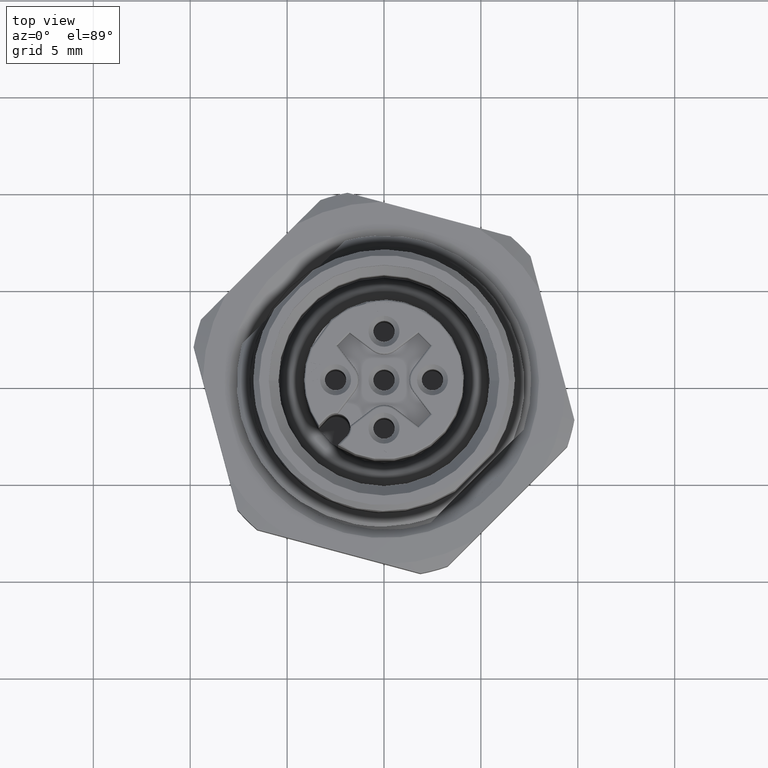
[diagram: clean part render]
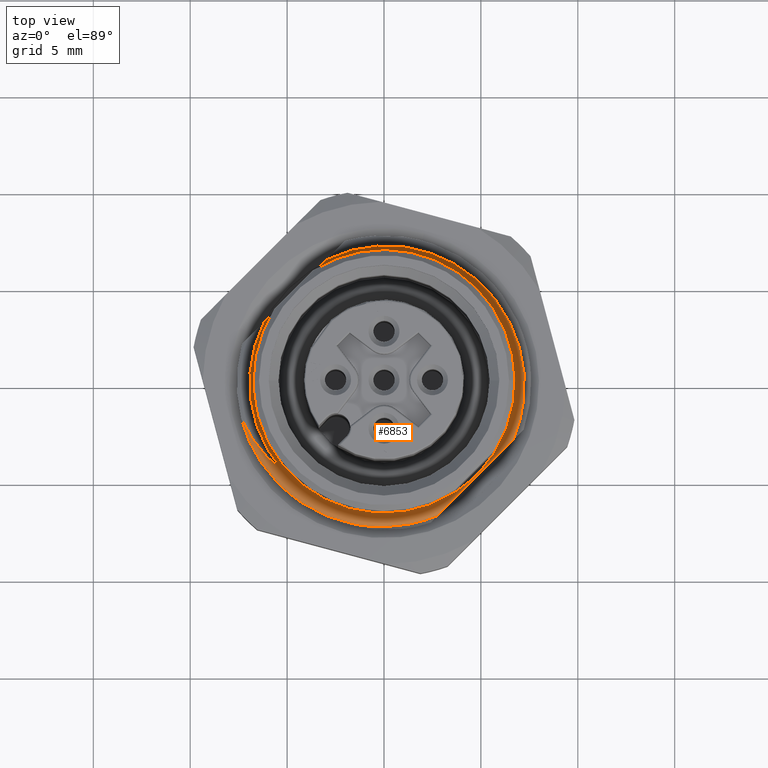
[diagram: same view with one face highlighted and labeled with its STEP entity id]
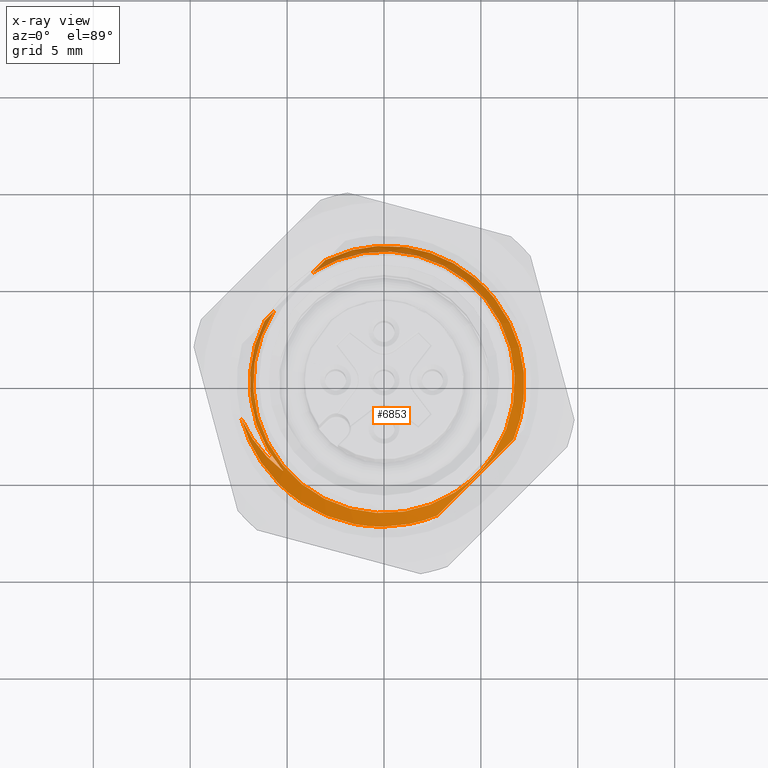
[diagram: x-ray of the same camera — body ghosted, the highlighted face saturated]
A machine part, top view. The second image highlights one B-rep face of the part: STEP entity #6853.
The next image is the same camera in x-ray: the body ghosted, the highlighted face saturated — about 8% of this face is hidden behind the body in this view.
In plain terms, the highlighted conical surface has half-angle 45 deg.
Its self-contained STEP definition (entity closure, byte-faithful):
#52=CARTESIAN_POINT('',(6.680182459152E0,-2.936469764985E0,6.402898358373E0));
#53=CARTESIAN_POINT('',(6.543415438608E0,-3.073236785529E0,6.473065454310E0));
#54=CARTESIAN_POINT('',(6.273211172743E0,-3.343441051394E0,6.598270466426E0));
#55=CARTESIAN_POINT('',(5.879728601174E0,-3.736923622963E0,6.740155228057E0));
#56=CARTESIAN_POINT('',(5.492769420778E0,-4.123882803360E0,6.838514652622E0));
#57=CARTESIAN_POINT('',(5.109107677332E0,-4.507544546805E0,6.893852236459E0));
#58=CARTESIAN_POINT('',(4.727056607656E0,-4.889595616481E0,6.906185992538E0));
#59=CARTESIAN_POINT('',(4.344623123279E0,-5.272029100858E0,6.875567361463E0));
#60=CARTESIAN_POINT('',(3.959746513078E0,-5.656905711059E0,6.801927895653E0));
#61=CARTESIAN_POINT('',(3.570454248147E0,-6.046197975990E0,6.685135809840E0));
#62=CARTESIAN_POINT('',(3.173053085985E0,-6.443599138152E0,6.524304869747E0));
#63=CARTESIAN_POINT('',(2.898708172987E0,-6.717944051150E0,6.385596429383E0));
#64=CARTESIAN_POINT('',(2.759543912717E0,-6.857108311420E0,6.308449621307E0));
#259=CARTESIAN_POINT('',(0.E0,0.E0,6.77E0));
#260=DIRECTION('',(0.E0,0.E0,-1.E0));
#261=DIRECTION('',(-7.481828328892E-1,-6.634926138020E-1,0.E0));
#262=AXIS2_PLACEMENT_3D('',#259,#260,#261);
#264=CARTESIAN_POINT('',(0.E0,0.E0,6.95E0));
#265=DIRECTION('',(0.E0,0.E0,1.E0));
#266=DIRECTION('',(-8.396340089838E-1,5.431525853366E-1,0.E0));
#267=AXIS2_PLACEMENT_3D('',#264,#265,#266);
#269=CARTESIAN_POINT('',(0.E0,0.E0,6.95E0));
#270=DIRECTION('',(0.E0,0.E0,1.E0));
#271=DIRECTION('',(8.396340089838E-1,-5.431525853366E-1,0.E0));
#272=AXIS2_PLACEMENT_3D('',#269,#270,#271);
#274=CARTESIAN_POINT('',(-3.016522307781E0,6.317287203881E0,6.699462559941E0));
#275=CARTESIAN_POINT('',(-2.794639924555E0,6.428025793193E0,6.695140846817E0));
#276=CARTESIAN_POINT('',(-2.338833987871E0,6.626022795732E0,6.686500381282E0));
#277=CARTESIAN_POINT('',(-1.626841639282E0,6.849083655509E0,6.673551644708E0));
#278=CARTESIAN_POINT('',(-8.940348971458E-1,6.995720762024E0,6.660605631095E0));
#279=CARTESIAN_POINT('',(-1.484349220641E-1,7.064011547773E0,6.647659409904E0));
#280=CARTESIAN_POINT('',(6.007130091699E-1,7.052962567223E0,6.634728109586E0));
#281=CARTESIAN_POINT('',(1.345553694981E0,6.962629843429E0,6.621802002832E0));
#282=CARTESIAN_POINT('',(2.078156082054E0,6.793653449579E0,6.608873011434E0));
#283=CARTESIAN_POINT('',(2.789315213033E0,6.547958721479E0,6.595957788939E0));
#284=CARTESIAN_POINT('',(3.471371878913E0,6.228150906406E0,6.583050443134E0));
#285=CARTESIAN_POINT('',(4.117119360529E0,5.837308006534E0,6.570140740729E0));
#286=CARTESIAN_POINT('',(4.718622925112E0,5.379949563179E0,6.557240404126E0));
#287=CARTESIAN_POINT('',(5.269057866366E0,4.861183641642E0,6.544350740817E0));
#288=CARTESIAN_POINT('',(5.762575248742E0,4.286275038739E0,6.531461990378E0));
#289=CARTESIAN_POINT('',(6.193391051013E0,3.661509809065E0,6.518575610703E0));
#290=CARTESIAN_POINT('',(6.556220471430E0,2.994346683402E0,6.505703153498E0));
#291=CARTESIAN_POINT('',(6.847235403134E0,2.291641418741E0,6.492834395836E0));
#292=CARTESIAN_POINT('',(7.063031435837E0,1.560776069187E0,6.479963656234E0));
#293=CARTESIAN_POINT('',(7.200775427479E0,8.107606431490E-1,6.467107345111E0));
#294=CARTESIAN_POINT('',(7.258984478697E0,4.944631141771E-2,6.454257380326E0));
#295=CARTESIAN_POINT('',(7.236756479229E0,-7.153057024647E-1,6.441404331577E0));
#296=CARTESIAN_POINT('',(7.134151160960E0,-1.474127050951E0,6.428563059796E0));
#297=CARTESIAN_POINT('',(6.952233512313E0,-2.218782043386E0,6.415730549925E0));
#298=CARTESIAN_POINT('',(6.779196343267E0,-2.700594314785E0,6.407175442272E0));
#299=CARTESIAN_POINT('',(6.680182459152E0,-2.936469764985E0,6.402898358373E0));
#301=CARTESIAN_POINT('',(-7.372879965349E0,-1.844082703287E0,6.1E0));
#302=CARTESIAN_POINT('',(-7.271439657829E0,-2.067277676479E0,6.144252265982E0));
#303=CARTESIAN_POINT('',(-7.047948041842E0,-2.500726854362E0,6.232918503446E0));
#304=CARTESIAN_POINT('',(-6.655629767119E0,-3.106355101902E0,6.366394781569E0));
#305=CARTESIAN_POINT('',(-6.211429959980E0,-3.662389802228E0,6.500372565320E0));
#306=CARTESIAN_POINT('',(-5.721035654980E0,-4.164307700923E0,6.634868544470E0));
#307=CARTESIAN_POINT('',(-5.367347864357E0,-4.460254515219E0,6.724896543218E0));
#308=CARTESIAN_POINT('',(-5.184907031922E0,-4.598003813648E0,6.77E0));
#326=CARTESIAN_POINT('',(2.759543912717E0,-6.857108311420E0,6.308449621307E0));
#327=CARTESIAN_POINT('',(2.530531342884E0,-6.953693336405E0,6.304347134953E0));
#328=CARTESIAN_POINT('',(2.062512892428E0,-7.123837126254E0,6.296144694729E0));
#329=CARTESIAN_POINT('',(1.337724503222E0,-7.307262355689E0,6.283850591826E0));
#330=CARTESIAN_POINT('',(5.971591628408E-1,-7.417014450480E0,6.271560166424E0));
#331=CARTESIAN_POINT('',(-1.520083647635E-1,-7.451765955749E0,
6.259268424105E0));
#332=CARTESIAN_POINT('',(-9.013686449688E-1,-7.410977893352E0,
6.246988818174E0));
#333=CARTESIAN_POINT('',(-1.643722277454E0,-7.294997181018E0,6.234714861811E0));
#334=CARTESIAN_POINT('',(-2.371960591423E0,-7.104686482192E0,6.222439282426E0));
#335=CARTESIAN_POINT('',(-3.078043891207E0,-6.841951430332E0,6.210172638316E0));
#336=CARTESIAN_POINT('',(-3.754861251371E0,-6.509371453983E0,6.197914076741E0));
#337=CARTESIAN_POINT('',(-4.395859407493E0,-6.109993018539E0,6.185657346782E0));
#338=CARTESIAN_POINT('',(-4.994470626882E0,-5.647617748184E0,6.173401878022E0));
#339=CARTESIAN_POINT('',(-5.544077367861E0,-5.127209360545E0,6.161158123692E0));
#340=CARTESIAN_POINT('',(-6.039434721961E0,-4.553643711060E0,6.148918604650E0));
#341=CARTESIAN_POINT('',(-6.475603051066E0,-3.932239694457E0,6.136677333727E0));
#342=CARTESIAN_POINT('',(-6.847614265237E0,-3.269792461842E0,6.124446901413E0));
#343=CARTESIAN_POINT('',(-7.151816148063E0,-2.572701501133E0,6.112222989552E0));
#344=CARTESIAN_POINT('',(-7.307357137230E0,-2.089261055749E0,6.104074051015E0));
#345=CARTESIAN_POINT('',(-7.372879965349E0,-1.844082703287E0,6.1E0));
#2188=CARTESIAN_POINT('',(-6.161043303624E0,3.172766208039E0,6.77E0));
#2189=CARTESIAN_POINT('',(-6.105546688774E0,3.228262822888E0,6.793930629587E0));
#2190=CARTESIAN_POINT('',(-5.994995989602E0,3.338813522061E0,6.839182782949E0));
#2191=CARTESIAN_POINT('',(-5.830405704945E0,3.503403806718E0,6.899219842175E0));
#2192=CARTESIAN_POINT('',(-5.721665818241E0,3.612143693421E0,6.933949605276E0));
#2193=CARTESIAN_POINT('',(-5.667529560641E0,3.666279951022E0,6.95E0));
#2395=CARTESIAN_POINT('',(-3.666279951022E0,5.667529560641E0,6.95E0));
#2396=CARTESIAN_POINT('',(-3.595396495631E0,5.738413016031E0,6.928984372233E0));
#2397=CARTESIAN_POINT('',(-3.452750175198E0,5.881059336464E0,6.882422906875E0));
#2398=CARTESIAN_POINT('',(-3.235975744731E0,6.097833766931E0,6.798829100551E0));
#2399=CARTESIAN_POINT('',(-3.089948290055E0,6.243861221608E0,6.734083031130E0));
#2400=CARTESIAN_POINT('',(-3.016522307781E0,6.317287203881E0,6.699462559941E0));
#3254=CARTESIAN_POINT('',(0.E0,0.E0,6.95E0));
#3255=DIRECTION('',(0.E0,0.E0,-1.E0));
#3256=DIRECTION('',(8.396340089838E-1,-5.431525853366E-1,0.E0));
#3257=AXIS2_PLACEMENT_3D('',#3254,#3255,#3256);
#6453=VERTEX_POINT('',#326);
#6454=VERTEX_POINT('',#345);
#6455=VERTEX_POINT('',#308);
#6456=CARTESIAN_POINT('',(5.667529560641E0,-3.666279951022E0,6.95E0));
#6457=CARTESIAN_POINT('',(3.666279951022E0,-5.667529560641E0,6.95E0));
#6458=VERTEX_POINT('',#6456);
#6459=VERTEX_POINT('',#6457);
#6460=VERTEX_POINT('',#2188);
#6461=VERTEX_POINT('',#2193);
#6462=VERTEX_POINT('',#2395);
#6463=VERTEX_POINT('',#2400);
#6464=VERTEX_POINT('',#52);
#6827=CARTESIAN_POINT('',(0.E0,0.E0,6.525E0));
#6828=DIRECTION('',(0.E0,0.E0,-1.E0));
#6829=DIRECTION('',(1.E0,0.E0,0.E0));
#6830=AXIS2_PLACEMENT_3D('',#6827,#6828,#6829);
#6831=CONICAL_SURFACE('',#6830,7.175E0,4.5E1);
#6833=ORIENTED_EDGE('',*,*,#6832,.T.);
#6835=ORIENTED_EDGE('',*,*,#6834,.T.);
#6837=ORIENTED_EDGE('',*,*,#6836,.T.);
#6839=ORIENTED_EDGE('',*,*,#6838,.F.);
#6841=ORIENTED_EDGE('',*,*,#6840,.T.);
#6843=ORIENTED_EDGE('',*,*,#6842,.T.);
#6845=ORIENTED_EDGE('',*,*,#6844,.T.);
#6846=ORIENTED_EDGE('',*,*,#6719,.T.);
#6848=ORIENTED_EDGE('',*,*,#6847,.T.);
#6850=ORIENTED_EDGE('',*,*,#6849,.T.);
#6851=EDGE_LOOP('',(#6833,#6835,#6837,#6839,#6841,#6843,#6845,#6846,#6848,
#6850));
#6852=FACE_OUTER_BOUND('',#6851,.F.);
#65=B_SPLINE_CURVE_WITH_KNOTS('',3,(#52,#53,#54,#55,#56,#57,#58,#59,#60,#61,#62,
#63,#64),.UNSPECIFIED.,.F.,.F.,(4,1,1,1,1,1,1,1,1,1,4),(0.E0,1.E-1,2.E-1,3.E-1,
4.E-1,5.E-1,6.E-1,7.E-1,8.E-1,9.E-1,1.E0),.UNSPECIFIED.);
#263=CIRCLE('',#262,6.93E0);
#268=CIRCLE('',#267,6.75E0);
#273=CIRCLE('',#272,6.75E0);
#300=B_SPLINE_CURVE_WITH_KNOTS('',3,(#274,#275,#276,#277,#278,#279,#280,#281,
#282,#283,#284,#285,#286,#287,#288,#289,#290,#291,#292,#293,#294,#295,#296,#297,
#298,#299),.UNSPECIFIED.,.F.,.F.,(4,1,1,1,1,1,1,1,1,1,1,1,1,1,1,1,1,1,1,1,1,1,1,
4),(0.E0,4.347826086957E-2,8.695652173913E-2,1.304347826087E-1,
1.739130434783E-1,2.173913043478E-1,2.608695652174E-1,3.043478260870E-1,
3.478260869565E-1,3.913043478261E-1,4.347826086957E-1,4.782608695652E-1,
5.217391304348E-1,5.652173913043E-1,6.086956521739E-1,6.521739130435E-1,
6.956521739130E-1,7.391304347826E-1,7.826086956522E-1,8.260869565217E-1,
8.695652173913E-1,9.130434782609E-1,9.565217391304E-1,1.E0),.UNSPECIFIED.);
#309=B_SPLINE_CURVE_WITH_KNOTS('',3,(#301,#302,#303,#304,#305,#306,#307,#308),
.UNSPECIFIED.,.F.,.F.,(4,1,1,1,1,4),(0.E0,2.E-1,4.E-1,6.E-1,8.E-1,1.E0),
.UNSPECIFIED.);
#346=B_SPLINE_CURVE_WITH_KNOTS('',3,(#326,#327,#328,#329,#330,#331,#332,#333,
#334,#335,#336,#337,#338,#339,#340,#341,#342,#343,#344,#345),.UNSPECIFIED.,.F.,
.F.,(4,1,1,1,1,1,1,1,1,1,1,1,1,1,1,1,1,4),(0.E0,5.882352941176E-2,
1.176470588235E-1,1.764705882353E-1,2.352941176471E-1,2.941176470588E-1,
3.529411764706E-1,4.117647058824E-1,4.705882352941E-1,5.294117647059E-1,
5.882352941176E-1,6.470588235294E-1,7.058823529412E-1,7.647058823529E-1,
8.235294117647E-1,8.823529411765E-1,9.411764705882E-1,1.E0),.UNSPECIFIED.);
#2194=B_SPLINE_CURVE_WITH_KNOTS('',3,(#2188,#2189,#2190,#2191,#2192,#2193),
.UNSPECIFIED.,.F.,.F.,(4,1,1,4),(0.E0,3.333333333333E-1,6.666666666667E-1,1.E0),
.UNSPECIFIED.);
#2401=B_SPLINE_CURVE_WITH_KNOTS('',3,(#2395,#2396,#2397,#2398,#2399,#2400),
.UNSPECIFIED.,.F.,.F.,(4,1,1,4),(0.E0,3.333333333333E-1,6.666666666667E-1,1.E0),
.UNSPECIFIED.);
#3258=CIRCLE('',#3257,6.75E0);
#6719=EDGE_CURVE('',#6464,#6453,#65,.T.);
#6832=EDGE_CURVE('',#6455,#6460,#263,.T.);
#6834=EDGE_CURVE('',#6460,#6461,#2194,.T.);
#6836=EDGE_CURVE('',#6461,#6459,#268,.T.);
#6838=EDGE_CURVE('',#6458,#6459,#3258,.T.);
#6840=EDGE_CURVE('',#6458,#6462,#273,.T.);
#6842=EDGE_CURVE('',#6462,#6463,#2401,.T.);
#6844=EDGE_CURVE('',#6463,#6464,#300,.T.);
#6847=EDGE_CURVE('',#6453,#6454,#346,.T.);
#6849=EDGE_CURVE('',#6454,#6455,#309,.T.);
#6853=ADVANCED_FACE('',(#6852),#6831,.T.);